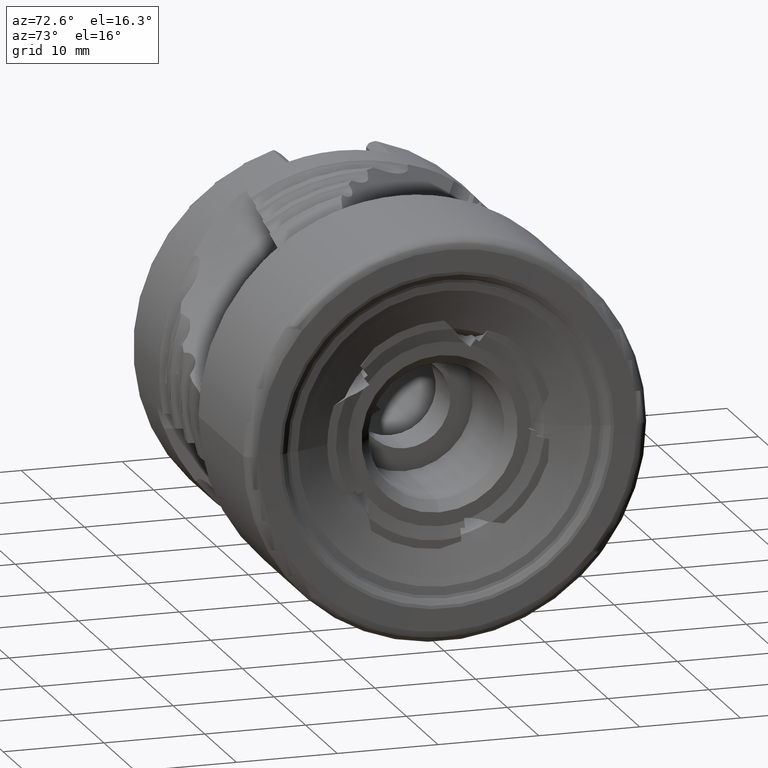
[diagram: clean part render]
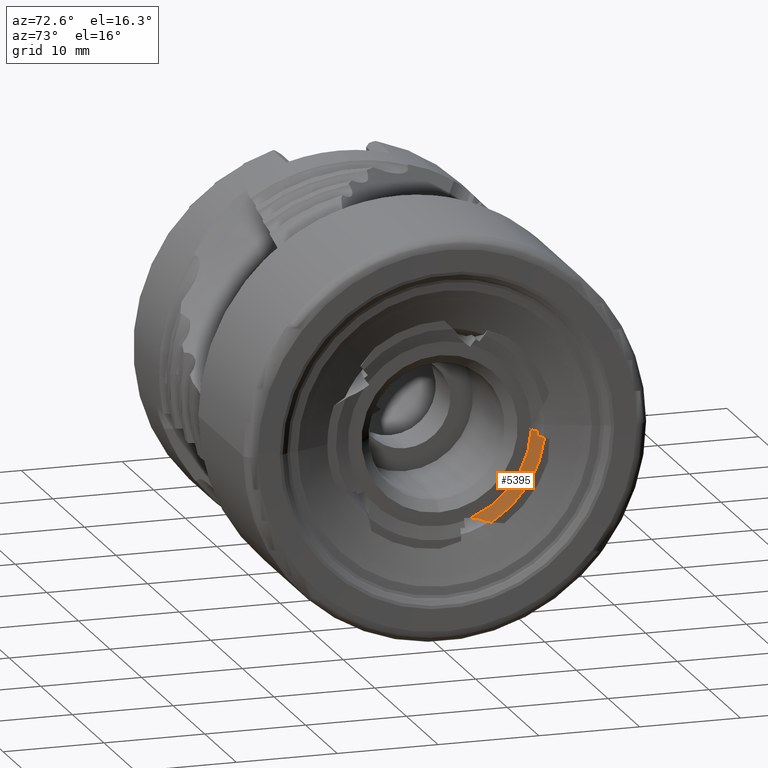
[diagram: same view with one face highlighted and labeled with its STEP entity id]
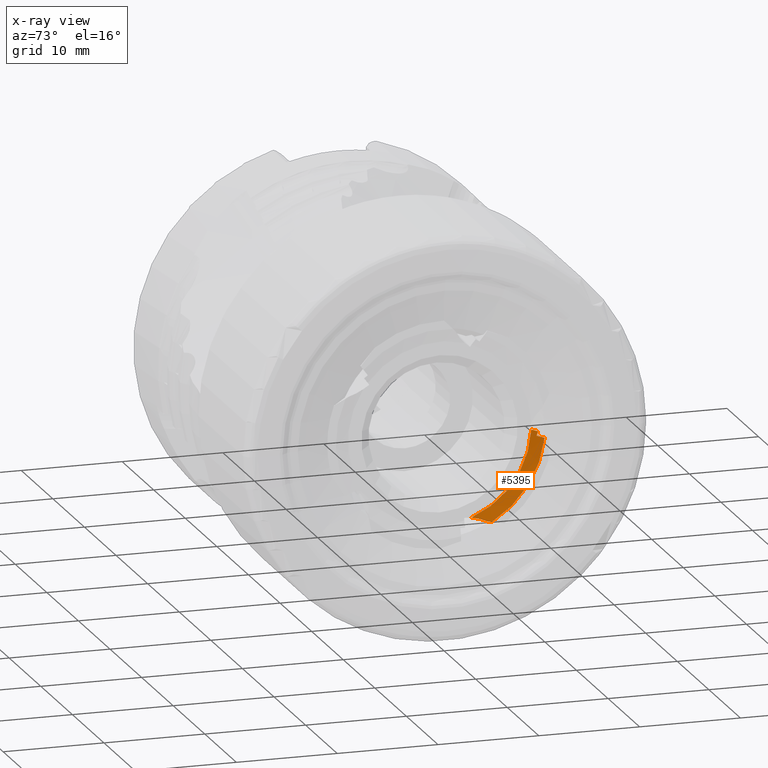
[diagram: x-ray of the same camera — body ghosted, the highlighted face saturated]
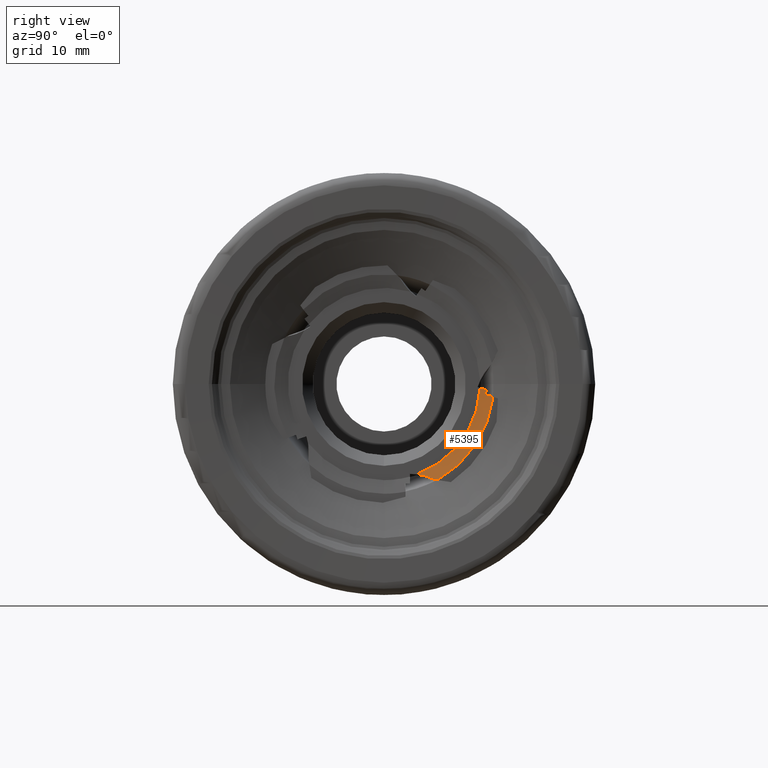
[diagram: same view with one face highlighted and labeled with its STEP entity id]
A machine part, auxiliary view. The second image highlights one B-rep face of the part: STEP entity #5395.
The next image is the same camera in x-ray: the body ghosted, the highlighted face saturated — about 0% of this face is hidden behind the body in this view.
A second angle (right view) of the same face is appended — the face is thin or edge-on in the first view.
In plain terms, the highlighted conical surface has half-angle 76.504 deg.
Its self-contained STEP definition (entity closure, byte-faithful):
#226 = CARTESIAN_POINT ( 'NONE',  ( -1.090093731210293626, 10.32030724175221792, -1.212385185090645967 ) ) ;
#287 = CARTESIAN_POINT ( 'NONE',  ( -1.399999999999999245, 0.0000000000000000000, 0.0000000000000000000 ) ) ;
#542 = AXIS2_PLACEMENT_3D ( 'NONE', #287, #13623, #4053 ) ;
#551 = VERTEX_POINT ( 'NONE', #13061 ) ;
#762 = CARTESIAN_POINT ( 'NONE',  ( -1.399999999999999245, 3.127625109527860214, -8.545639892614879329 ) ) ;
#796 = CARTESIAN_POINT ( 'NONE',  ( -1.272232226475855876, 9.580431503881818855, -0.9989002059197606975 ) ) ;
#990 = EDGE_CURVE ( 'NONE', #551, #2696, #6388, .T. ) ;
#1303 = CARTESIAN_POINT ( 'NONE',  ( -1.090093731210293626, 10.32030724175221792, -1.212385185090645967 ) ) ;
#1610 = CARTESIAN_POINT ( 'NONE',  ( -1.090093731210293626, 0.0000000000000000000, 0.0000000000000000000 ) ) ;
#2186 = CARTESIAN_POINT ( 'NONE',  ( -1.256101973401200000, 9.674792148470180209, -0.7084880035129242914 ) ) ;
#2696 = VERTEX_POINT ( 'NONE', #4166 ) ;
#2781 = FACE_OUTER_BOUND ( 'NONE', #2815, .T. ) ;
#2815 = EDGE_LOOP ( 'NONE', ( #8000, #5722, #3838, #6408, #5964, #4400, #6689 ) ) ;
#2883 = AXIS2_PLACEMENT_3D ( 'NONE', #1610, #8659, #9919 ) ;
#2906 = CARTESIAN_POINT ( 'NONE',  ( -1.252460566607844550, 4.190518359887922095, -8.770719916475536948 ) ) ;
#2929 = CARTESIAN_POINT ( 'NONE',  ( -1.246816107429258302, 9.721959559960781760, -0.5633216376771359446 ) ) ;
#3782 = CARTESIAN_POINT ( 'NONE',  ( -1.349033655204090909, 9.302009967383547462, -0.4419767759906497728 ) ) ;
#3838 = ORIENTED_EDGE ( 'NONE', *, *, #15409, .T. ) ;
#4023 = EDGE_CURVE ( 'NONE', #4199, #5850, #5792, .T. ) ;
#4053 = DIRECTION ( 'NONE',  ( 0.0000000000000000000, 0.0000000000000000000, -1.000000000000000000 ) ) ;
#4166 = CARTESIAN_POINT ( 'NONE',  ( -1.090093731210293404, 5.075963802022601001, -9.067150097012117271 ) ) ;
#4199 = VERTEX_POINT ( 'NONE', #5786 ) ;
#4400 = ORIENTED_EDGE ( 'NONE', *, *, #990, .T. ) ;
#4536 = DIRECTION ( 'NONE',  ( 0.0000000000000000000, 0.0000000000000000000, -1.000000000000000000 ) ) ;
#5041 = CARTESIAN_POINT ( 'NONE',  ( -1.297966061110080505, 9.511992339122517848, -0.5026577535114202799 ) ) ;
#5073 = CARTESIAN_POINT ( 'NONE',  ( -1.150869045451754724, 10.07369363091644132, -1.141236539095108249 ) ) ;
#5152 = EDGE_CURVE ( 'NONE', #12064, #551, #12315, .T. ) ;
#5395 = ADVANCED_FACE ( 'NONE', ( #2781 ), #12679, .F. ) ;
#5400 = CARTESIAN_POINT ( 'NONE',  ( -1.149076471365659158, 4.683104587935953411, -9.000000000000000000 ) ) ;
#5722 = ORIENTED_EDGE ( 'NONE', *, *, #12517, .T. ) ;
#5786 = CARTESIAN_POINT ( 'NONE',  ( -1.272232226475855876, 9.580431503881818855, -0.9989002059197606975 ) ) ;
#5792 = B_SPLINE_CURVE_WITH_KNOTS ( 'NONE', 3,
 ( #9772, #12157, #5073, #1303 ),
 .UNSPECIFIED., .F., .F.,
 ( 4, 4 ),
 ( 0.0005570771661513951659, 0.001348383902387977149 ),
 .UNSPECIFIED. ) ;
#5845 = CIRCLE ( 'NONE', #542, 9.099999999999999645 ) ;
#5850 = VERTEX_POINT ( 'NONE', #226 ) ;
#5964 = ORIENTED_EDGE ( 'NONE', *, *, #5152, .T. ) ;
#6108 = CARTESIAN_POINT ( 'NONE',  ( -1.110123594757614907, 4.945063531965033121, -9.044785005055793192 ) ) ;
#6388 = B_SPLINE_CURVE_WITH_KNOTS ( 'NONE', 3,
 ( #13111, #11544, #6108, #12150 ),
 .UNSPECIFIED., .F., .F.,
 ( 4, 4 ),
 ( 1.198989466839848824E-06, 0.0004040965710650097349 ),
 .UNSPECIFIED. ) ;
#6408 = ORIENTED_EDGE ( 'NONE', *, *, #9385, .F. ) ;
#6641 = VERTEX_POINT ( 'NONE', #7452 ) ;
#6689 = ORIENTED_EDGE ( 'NONE', *, *, #13348, .T. ) ;
#6865 = B_SPLINE_CURVE_WITH_KNOTS ( 'NONE', 3,
 ( #8601, #5041, #3782, #9905 ),
 .UNSPECIFIED., .F., .F.,
 ( 4, 4 ),
 ( 0.0006875568564037398906, 0.001360939256242249019 ),
 .UNSPECIFIED. ) ;
#7452 = CARTESIAN_POINT ( 'NONE',  ( -1.399999999999999245, 9.092009101729320975, -0.3812748274816860627 ) ) ;
#7638 = CARTESIAN_POINT ( 'NONE',  ( -1.399999999999999245, 3.127625109527860214, -8.545639892614879329 ) ) ;
#7909 = AXIS2_PLACEMENT_3D ( 'NONE', #8788, #14219, #4536 ) ;
#8000 = ORIENTED_EDGE ( 'NONE', *, *, #4023, .F. ) ;
#8601 = CARTESIAN_POINT ( 'NONE',  ( -1.246816107429258302, 9.721959559960781760, -0.5633216376771359446 ) ) ;
#8659 = DIRECTION ( 'NONE',  ( 1.000000000000000000, -0.0000000000000000000, -0.0000000000000000000 ) ) ;
#8788 = CARTESIAN_POINT ( 'NONE',  ( -1.090093731210293626, 0.0000000000000000000, 0.0000000000000000000 ) ) ;
#9385 = EDGE_CURVE ( 'NONE', #12064, #6641, #5845, .T. ) ;
#9772 = CARTESIAN_POINT ( 'NONE',  ( -1.272232226475855876, 9.580431503881818855, -0.9989002059197606975 ) ) ;
#9905 = CARTESIAN_POINT ( 'NONE',  ( -1.399999999999999245, 9.092009101729320975, -0.3812748274816860627 ) ) ;
#9919 = DIRECTION ( 'NONE',  ( 0.0000000000000000000, 0.0000000000000000000, -1.000000000000000000 ) ) ;
#10035 = B_SPLINE_CURVE_WITH_KNOTS ( 'NONE', 3,
 ( #796, #15310, #2186, #15202 ),
 .UNSPECIFIED., .F., .F.,
 ( 4, 4 ),
 ( 0.003494311490069407309, 0.003952907260758374390 ),
 .UNSPECIFIED. ) ;
#10104 = CARTESIAN_POINT ( 'NONE',  ( -1.338733631267562396, 3.672838971001221697, -8.617933123509390114 ) ) ;
#11544 = CARTESIAN_POINT ( 'NONE',  ( -1.129793876447370282, 4.814110729602961491, -9.022401916253405929 ) ) ;
#12064 = VERTEX_POINT ( 'NONE', #762 ) ;
#12150 = CARTESIAN_POINT ( 'NONE',  ( -1.090093731210293404, 5.075963802022601001, -9.067150097012117271 ) ) ;
#12157 = CARTESIAN_POINT ( 'NONE',  ( -1.211586841675419857, 9.827069291903328008, -1.070075907671627746 ) ) ;
#12315 = B_SPLINE_CURVE_WITH_KNOTS ( 'NONE', 3,
 ( #7638, #10104, #2906, #5400 ),
 .UNSPECIFIED., .F., .F.,
 ( 4, 4 ),
 ( 1.785147793609256514E-06, 0.001641578454432711170 ),
 .UNSPECIFIED. ) ;
#12517 = EDGE_CURVE ( 'NONE', #4199, #14884, #10035, .T. ) ;
#12679 = CONICAL_SURFACE ( 'NONE', #2883, 10.39127611995709444, 1.335251346074030954 ) ;
#13061 = CARTESIAN_POINT ( 'NONE',  ( -1.149076471365659158, 4.683104587935953411, -9.000000000000000000 ) ) ;
#13111 = CARTESIAN_POINT ( 'NONE',  ( -1.149076471365659158, 4.683104587935953411, -9.000000000000000000 ) ) ;
#13336 = CIRCLE ( 'NONE', #7909, 10.39127611995709444 ) ;
#13348 = EDGE_CURVE ( 'NONE', #2696, #5850, #13336, .T. ) ;
#13623 = DIRECTION ( 'NONE',  ( 1.000000000000000000, -0.0000000000000000000, -0.0000000000000000000 ) ) ;
#14219 = DIRECTION ( 'NONE',  ( 1.000000000000000000, -0.0000000000000000000, -0.0000000000000000000 ) ) ;
#14884 = VERTEX_POINT ( 'NONE', #2929 ) ;
#15202 = CARTESIAN_POINT ( 'NONE',  ( -1.246816107429258302, 9.721959559960781760, -0.5633216376771359446 ) ) ;
#15310 = CARTESIAN_POINT ( 'NONE',  ( -1.264583262470324598, 9.627616227600704235, -0.8536805585239889416 ) ) ;
#15409 = EDGE_CURVE ( 'NONE', #14884, #6641, #6865, .T. ) ;